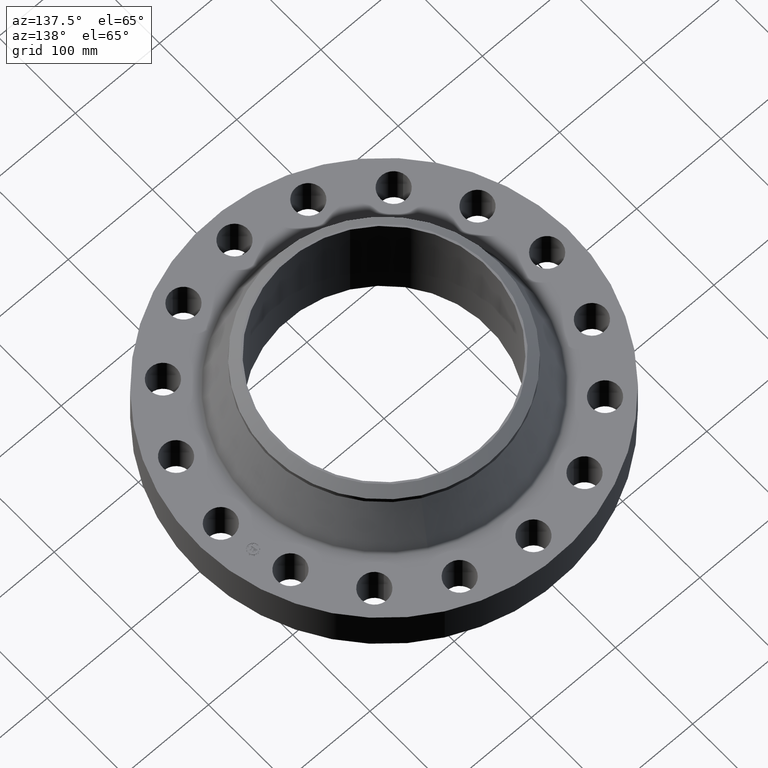
[diagram: clean part render]
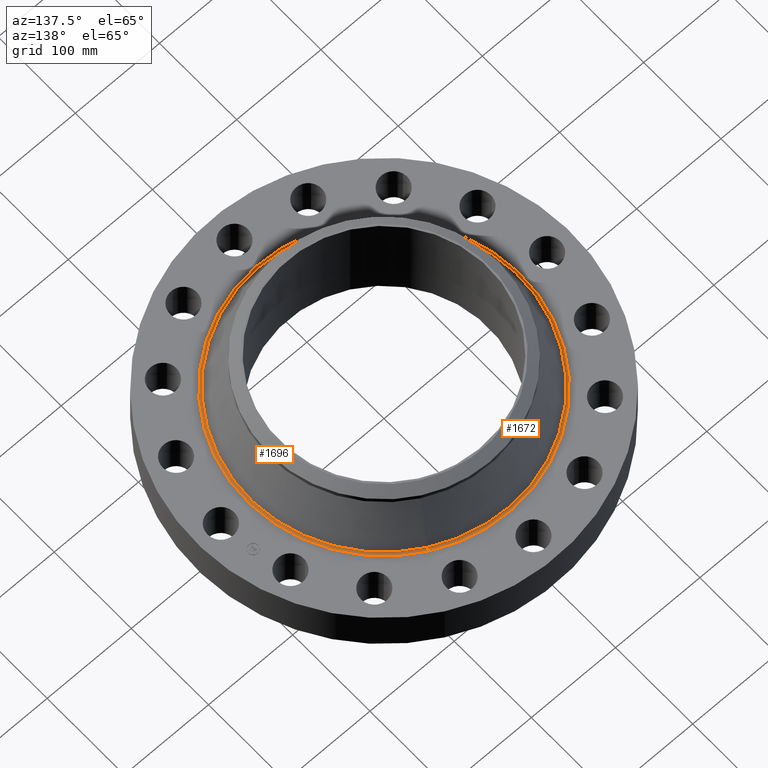
[diagram: same view with one multi-face feature highlighted, each face labeled with its STEP entity id]
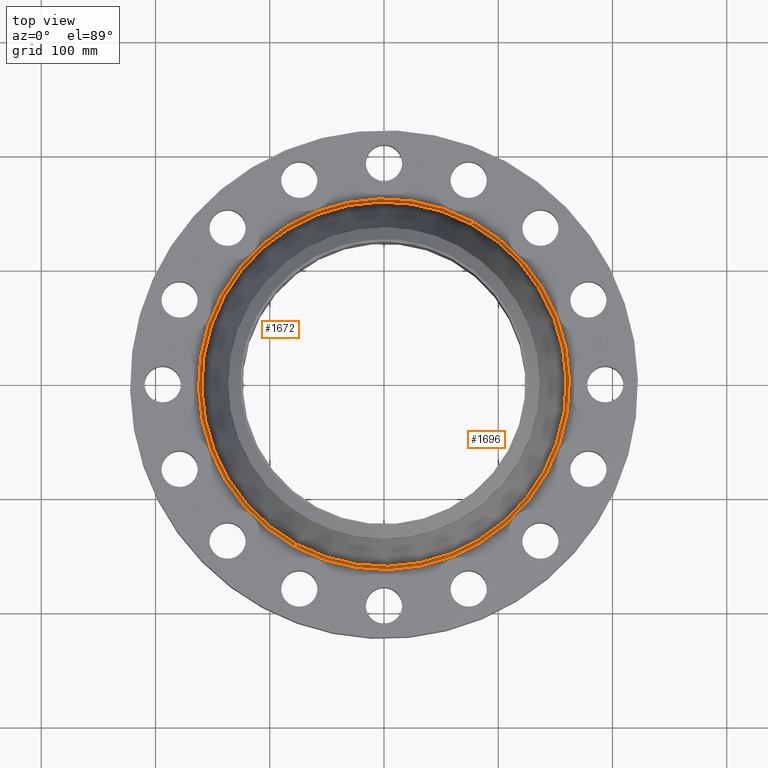
[diagram: same view with one multi-face feature highlighted, each face labeled with its STEP entity id]
A machine part, auxiliary view. The highlighted faces form ONE feature: a constant-radius fillet chain: 2 tangent blend faces with common blend radius 3.048 mm. The faces share edges in the B-rep.
A second angle (top view) of the same feature is appended — it is thin or edge-on in the first view.
Their STEP definitions:
[1] entity #1672 (Torus):
#488=AXIS2_PLACEMENT_3D('Circle Axis2P3D',#486,#487,$) ;
#1645=AXIS2_PLACEMENT_3D('Torus Axis2P3D',#1642,#1643,#1644) ;
#1649=AXIS2_PLACEMENT_3D('Circle Axis2P3D',#1647,#1648,$) ;
#1656=AXIS2_PLACEMENT_3D('Circle Axis2P3D',#1654,#1655,$) ;
#1663=AXIS2_PLACEMENT_3D('Circle Axis2P3D',#1661,#1662,$) ;
#486=CARTESIAN_POINT('Axis2P3D Location',(4.36642498186E-011,-2.05195790368E-011,2.12000000001)) ;
#490=CARTESIAN_POINT('Vertex',(-3.06323934998,-5.60722201881,2.12000000001)) ;
#492=CARTESIAN_POINT('Vertex',(3.06323934998,5.60722201881,2.12000000001)) ;
#1642=CARTESIAN_POINT('Axis2P3D Location',(0.,0.,2.24000000001)) ;
#1647=CARTESIAN_POINT('Axis2P3D Location',(-3.06323934998,-5.6072220188,2.24000000001)) ;
#1651=CARTESIAN_POINT('Vertex',(-3.01028976137,-5.51029844698,2.19307279798)) ;
#1654=CARTESIAN_POINT('Axis2P3D Location',(0.,0.,2.19307279798)) ;
#1658=CARTESIAN_POINT('Vertex',(3.01028976137,5.51029844698,2.19307279798)) ;
#1661=CARTESIAN_POINT('Axis2P3D Location',(3.06323934998,5.6072220188,2.24000000001)) ;
#487=DIRECTION('Axis2P3D Direction',(0.,0.,-0.0393700787402)) ;
#1643=DIRECTION('Axis2P3D Direction',(0.,0.,-0.0393700787402)) ;
#1644=DIRECTION('Axis2P3D XDirection',(-0.0188750212049,-0.0345504945626,0.)) ;
#1648=DIRECTION('Axis2P3D Direction',(0.0345504945626,-0.0188750212049,0.)) ;
#1655=DIRECTION('Axis2P3D Direction',(-0.,0.,-0.0393700787402)) ;
#1662=DIRECTION('Axis2P3D Direction',(-0.0345504945626,0.0188750212049,0.)) ;
#1667=ORIENTED_EDGE('',*,*,#494,.F.) ;
#1668=ORIENTED_EDGE('',*,*,#1653,.T.) ;
#1669=ORIENTED_EDGE('',*,*,#1660,.T.) ;
#1670=ORIENTED_EDGE('',*,*,#1665,.F.) ;
#1672=ADVANCED_FACE('PartBody',(#1671),#1646,.F.) ;
#489=CIRCLE('generated circle',#488,6.38939543962) ;
#1650=CIRCLE('generated circle',#1649,0.12) ;
#1657=CIRCLE('generated circle',#1656,6.27895161808) ;
#1664=CIRCLE('generated circle',#1663,0.12) ;
#1646=TOROIDAL_SURFACE('homeo Torus',#1645,6.38939543959,0.12) ;
#494=EDGE_CURVE('',#491,#493,#489,.T.) ;
#1653=EDGE_CURVE('',#491,#1652,#1650,.T.) ;
#1660=EDGE_CURVE('',#1652,#1659,#1657,.T.) ;
#1665=EDGE_CURVE('',#493,#1659,#1664,.T.) ;
#1666=EDGE_LOOP('',(#1667,#1668,#1669,#1670)) ;
#1671=FACE_OUTER_BOUND('',#1666,.T.) ;
#491=VERTEX_POINT('',#490) ;
#493=VERTEX_POINT('',#492) ;
#1652=VERTEX_POINT('',#1651) ;
#1659=VERTEX_POINT('',#1658) ;
[2] entity #1696 (Torus):
#497=AXIS2_PLACEMENT_3D('Circle Axis2P3D',#495,#496,$) ;
#1649=AXIS2_PLACEMENT_3D('Circle Axis2P3D',#1647,#1648,$) ;
#1663=AXIS2_PLACEMENT_3D('Circle Axis2P3D',#1661,#1662,$) ;
#1683=AXIS2_PLACEMENT_3D('Torus Axis2P3D',#1680,#1681,#1682) ;
#1687=AXIS2_PLACEMENT_3D('Circle Axis2P3D',#1685,#1686,$) ;
#490=CARTESIAN_POINT('Vertex',(-3.06323934998,-5.60722201881,2.12000000001)) ;
#492=CARTESIAN_POINT('Vertex',(3.06323934998,5.60722201881,2.12000000001)) ;
#495=CARTESIAN_POINT('Axis2P3D Location',(-4.36642498186E-011,2.71886100685E-011,2.12000000001)) ;
#1647=CARTESIAN_POINT('Axis2P3D Location',(-3.06323934998,-5.6072220188,2.24000000001)) ;
#1651=CARTESIAN_POINT('Vertex',(-3.01028976137,-5.51029844698,2.19307279798)) ;
#1658=CARTESIAN_POINT('Vertex',(3.01028976137,5.51029844698,2.19307279798)) ;
#1661=CARTESIAN_POINT('Axis2P3D Location',(3.06323934998,5.6072220188,2.24000000001)) ;
#1680=CARTESIAN_POINT('Axis2P3D Location',(0.,0.,2.24000000001)) ;
#1685=CARTESIAN_POINT('Axis2P3D Location',(0.,0.,2.19307279798)) ;
#496=DIRECTION('Axis2P3D Direction',(0.,0.,-0.0393700787402)) ;
#1648=DIRECTION('Axis2P3D Direction',(0.0345504945626,-0.0188750212049,0.)) ;
#1662=DIRECTION('Axis2P3D Direction',(-0.0345504945626,0.0188750212049,0.)) ;
#1681=DIRECTION('Axis2P3D Direction',(0.,0.,-0.0393700787402)) ;
#1682=DIRECTION('Axis2P3D XDirection',(0.0188750212049,0.0345504945626,0.)) ;
#1686=DIRECTION('Axis2P3D Direction',(-0.,0.,-0.0393700787402)) ;
#1691=ORIENTED_EDGE('',*,*,#499,.F.) ;
#1692=ORIENTED_EDGE('',*,*,#1665,.T.) ;
#1693=ORIENTED_EDGE('',*,*,#1689,.T.) ;
#1694=ORIENTED_EDGE('',*,*,#1653,.F.) ;
#1696=ADVANCED_FACE('PartBody',(#1695),#1684,.F.) ;
#498=CIRCLE('generated circle',#497,6.38939543962) ;
#1650=CIRCLE('generated circle',#1649,0.12) ;
#1664=CIRCLE('generated circle',#1663,0.12) ;
#1688=CIRCLE('generated circle',#1687,6.27895161808) ;
#1684=TOROIDAL_SURFACE('homeo Torus',#1683,6.38939543959,0.12) ;
#499=EDGE_CURVE('',#493,#491,#498,.T.) ;
#1653=EDGE_CURVE('',#491,#1652,#1650,.T.) ;
#1665=EDGE_CURVE('',#493,#1659,#1664,.T.) ;
#1689=EDGE_CURVE('',#1659,#1652,#1688,.T.) ;
#1690=EDGE_LOOP('',(#1691,#1692,#1693,#1694)) ;
#1695=FACE_OUTER_BOUND('',#1690,.T.) ;
#491=VERTEX_POINT('',#490) ;
#493=VERTEX_POINT('',#492) ;
#1652=VERTEX_POINT('',#1651) ;
#1659=VERTEX_POINT('',#1658) ;